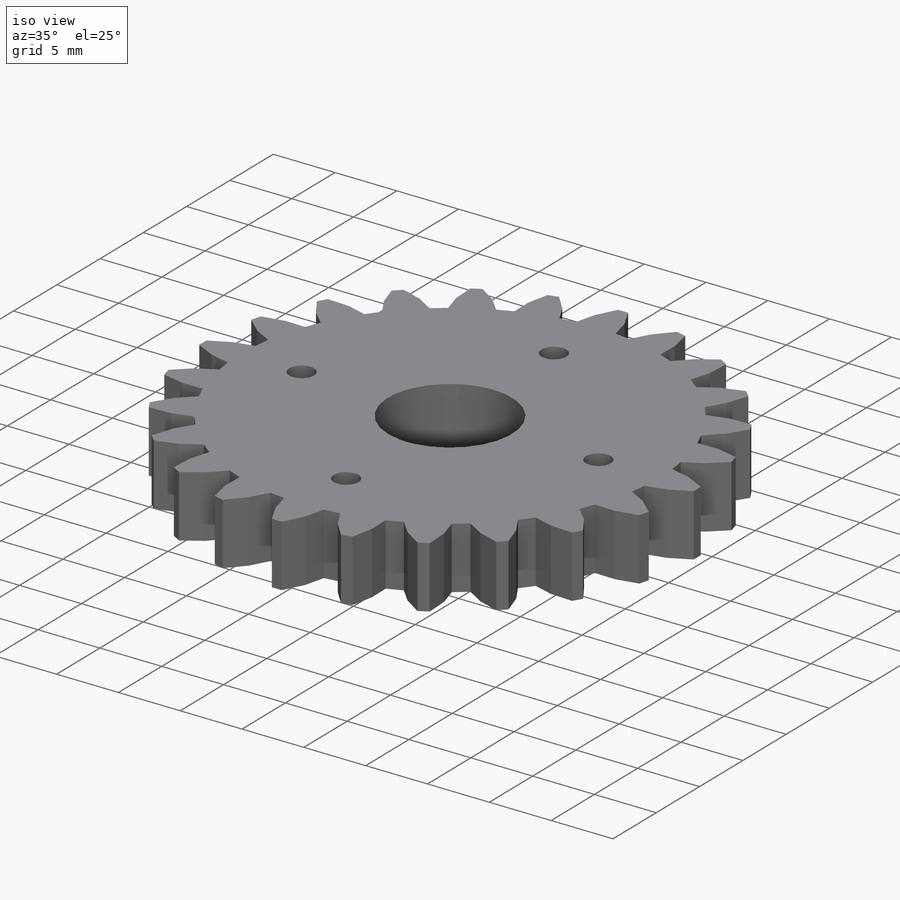
[diagram: iso view]
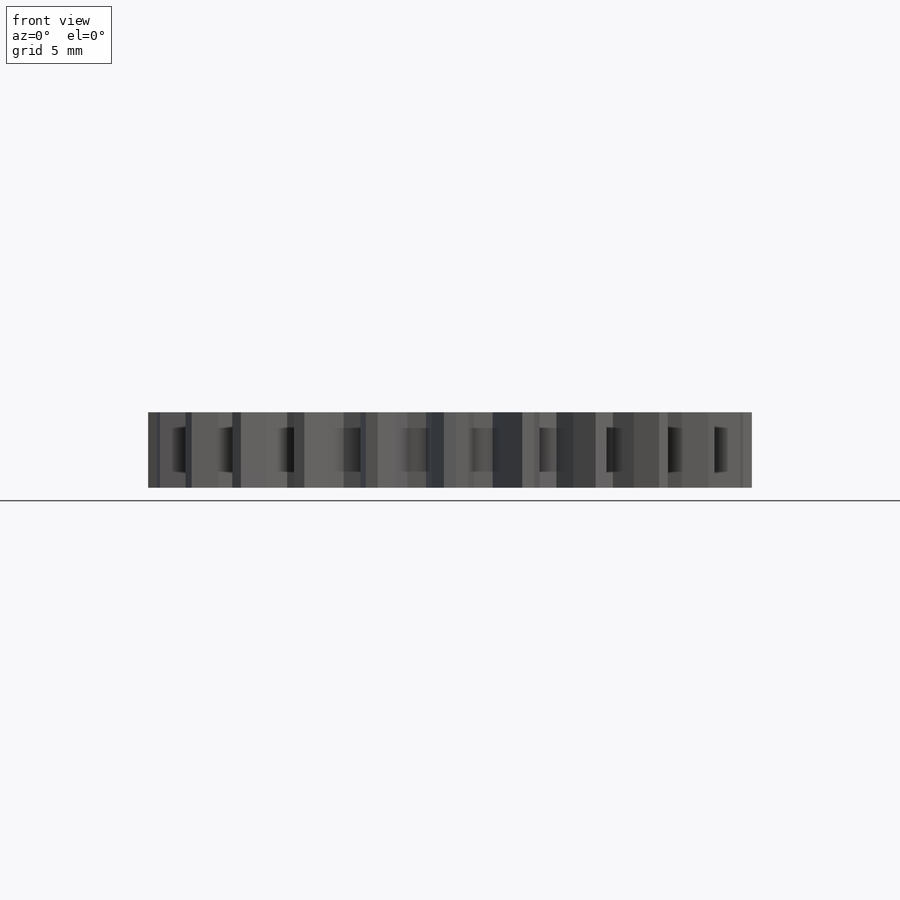
[diagram: front view]
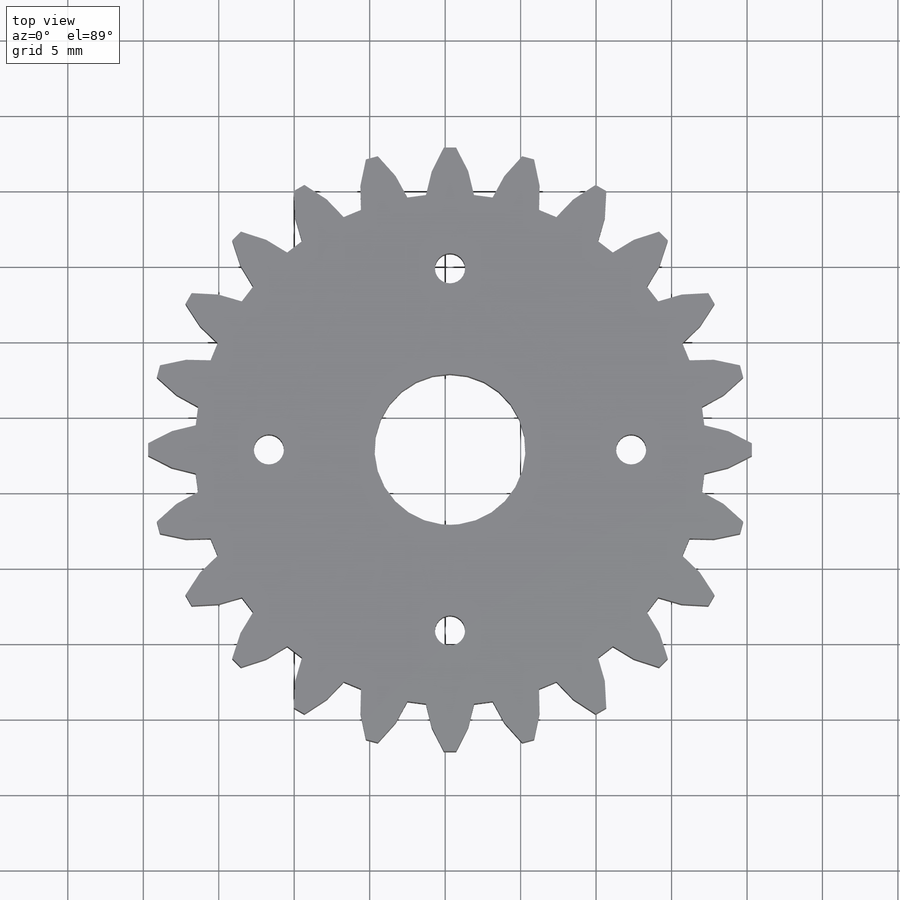
[diagram: top view]
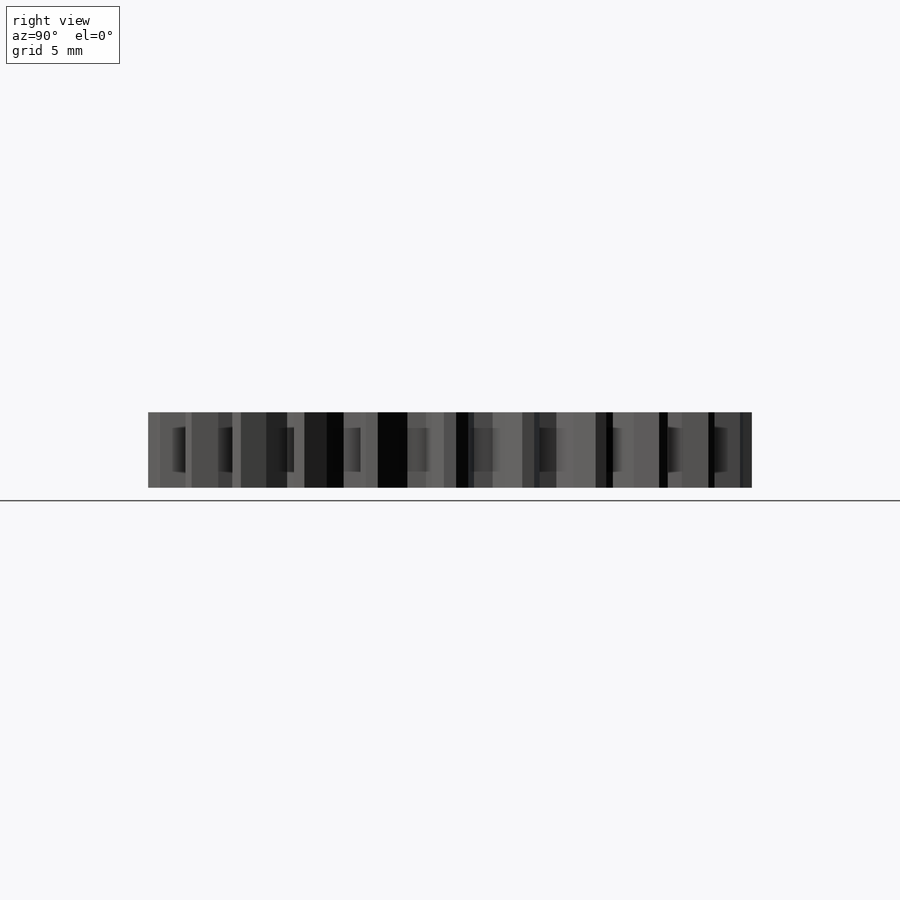
[diagram: right view]
SOLIDWORKS PART (.sldprt)
format: sldprt  version: not decoded by parser v0  size: 321,024 bytes
history: native  units: mm
features: sketch x3, cut_extrude x2, material x1, extrude x1 (+11 scaffold rows collapsed)
feature tree (18):
  scaffold x11  (default folders/planes/origin — collapsed)
  material  "Acrylic (Medium-high impact)"
  sketch  "Sketch2"
  sketch  "Sketch4"  dims[D1=10.0mm]
  sketch  "Sketch5"  dims[D2=2.0mm D1=12.0mm D3=4.0]
  extrude  "Boss-Extrude1"  Depth=5mm
  cut_extrude  "Cut-Extrude1"  Depth=5mm
  cut_extrude  "Cut-Extrude2"  Depth=5mm
decode coverage: 5 of 6 modeling features carry decoded parameters
note: suppression state not decoded; provenance and decode notes live in map.json
